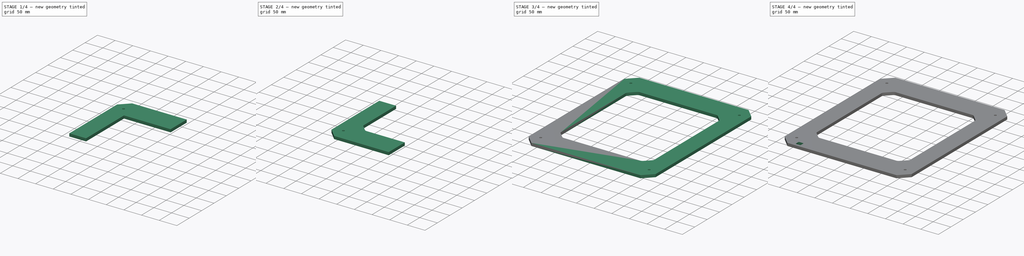
[diagram: build sequence overview — one tinted view per stage of 4, left to right]
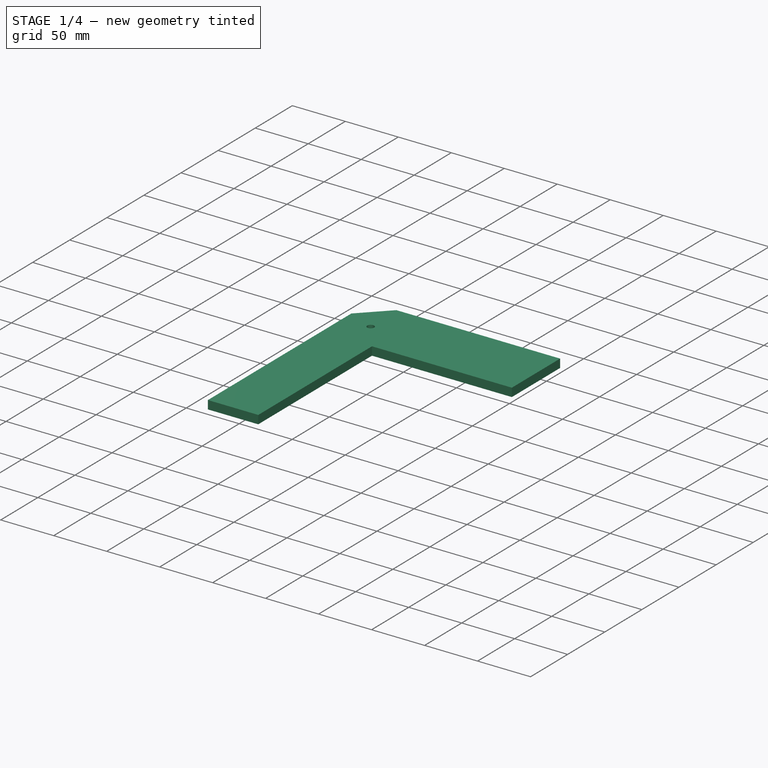
[diagram: stage 1 of 4 — iso view after this stage's code; geometry added in this stage tinted green]
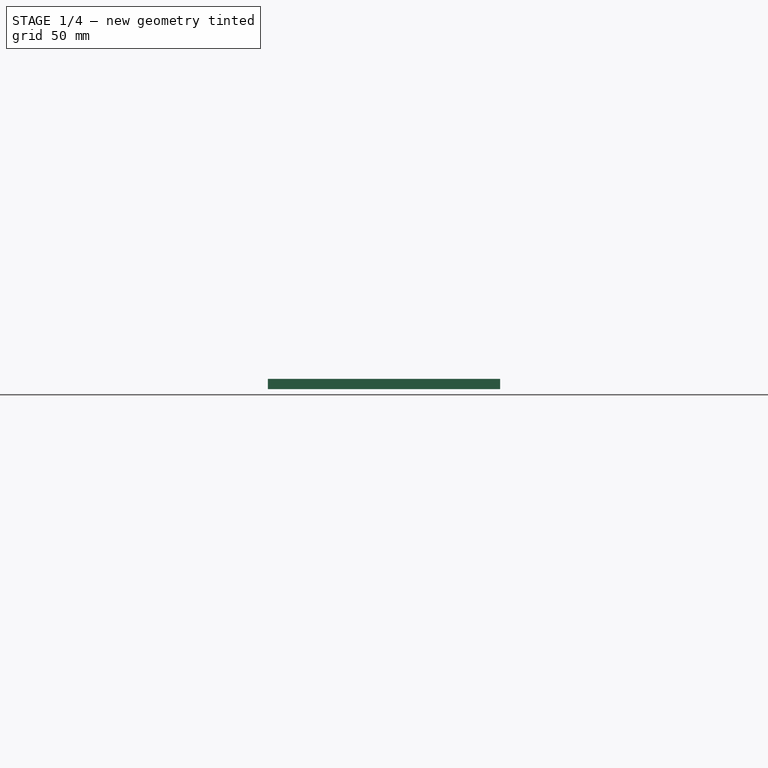
[diagram: stage 1 of 4 — front view after this stage's code; geometry added in this stage tinted green]
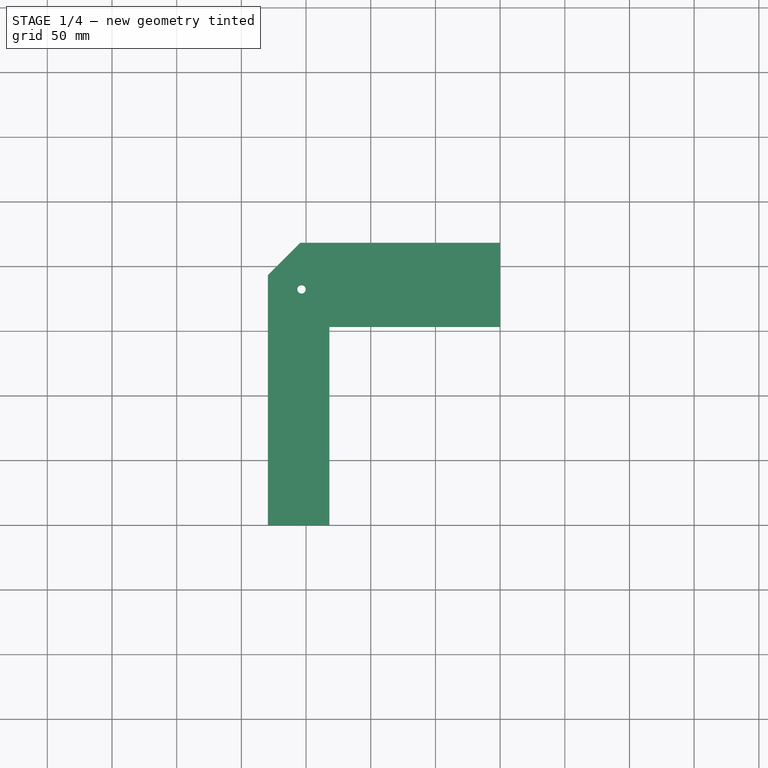
[diagram: stage 1 of 4 — top view after this stage's code; geometry added in this stage tinted green]
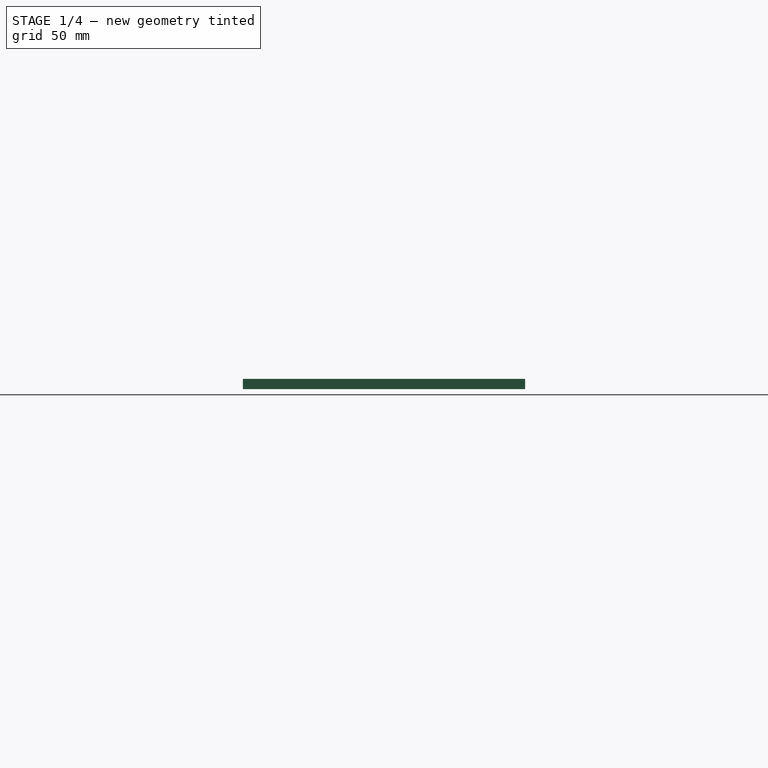
[diagram: stage 1 of 4 — right view after this stage's code; geometry added in this stage tinted green]
FCSTD DOCUMENT  (FreeCAD 0.14R3310 (Git))
Label: LATERAL DERECHO (MARCO EXTERIOR)
License: CC-BY 3.0
LicenseURL: http://creativecommons.org/licenses/by/3.0/
objects: Sketcher::SketchObject×2, PartDesign::Chamfer×2, PartDesign::Fillet×2, Part::Mirroring×2, Part::MultiFuse×2, PartDesign::Pad×1, PartDesign::Pocket×1
note: 14 computed .brp shape members not serialized (recipe doc carries the construction recipe); baked Part::Feature solids carry a one-line shape summary decoded from their .brp

FEATURE [Sketcher::SketchObject] Sketch
  sketch-geometry (7):
    g0: LineSegment StartX=0 StartY=218.25 StartZ=0 EndX=-179.5 EndY=218.25 EndZ=0
    g1: LineSegment StartX=-179.5 StartY=218.25 StartZ=0 EndX=-179.5 EndY=0 EndZ=0
    g2: Circle CenterX=-153.5 CenterY=182.25 CenterZ=0 NormalX=0 NormalY=0 NormalZ=1 Radius=3.25
    g3: LineSegment StartX=0 StartY=153.25 StartZ=0 EndX=-132 EndY=153.25 EndZ=0
    g4: LineSegment StartX=-132 StartY=153.25 StartZ=0 EndX=-132 EndY=0 EndZ=0
    g5: LineSegment StartX=0 StartY=218.25 StartZ=0 EndX=0 EndY=153.25 EndZ=0
    g6: LineSegment StartX=-132 StartY=0 StartZ=0 EndX=-179.5 EndY=0 EndZ=0
  constraints (21):
    c: PointOnObject(g0,g-2)
    c: Horizontal(g0)
    c: Coincident(g1,g0)
    c: PointOnObject(g1,g-1)
    c: Vertical(g1)
    c: PointOnObject(g3,g-2)
    c: Horizontal(g3)
    c: Coincident(g4,g3)
    c: PointOnObject(g4,g-1)
    c: Vertical(g4)
    c: Distance(g0) = 179.5
    c: DistanceY(g1) = -218.25
    c: Radius(g2) = 3.25
    c: Distance(g2,g0) = 36
    c: Distance(g2,g1) = 26
    c: Distance(g4) = 153.25
    c: Distance(g3) = 132
    c: Coincident(g5,g0)
    c: Coincident(g5,g3)
    c: Coincident(g6,g4)
    c: Coincident(g6,g1)
FEATURE [PartDesign::Pad] Pad
  Length = 8
  Length2 = 100
  Sketch = -> Sketch
  Type = 0
FEATURE [PartDesign::Chamfer] Chamfer
  Base = -> Pad [Edge5]
  Size = 25
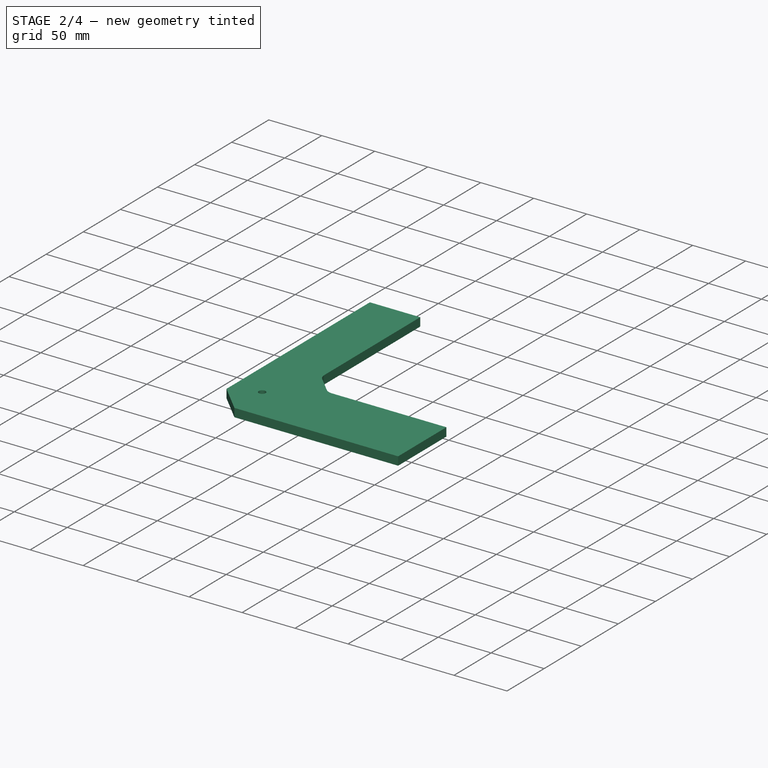
[diagram: stage 2 of 4 — iso view after this stage's code; geometry added in this stage tinted green]
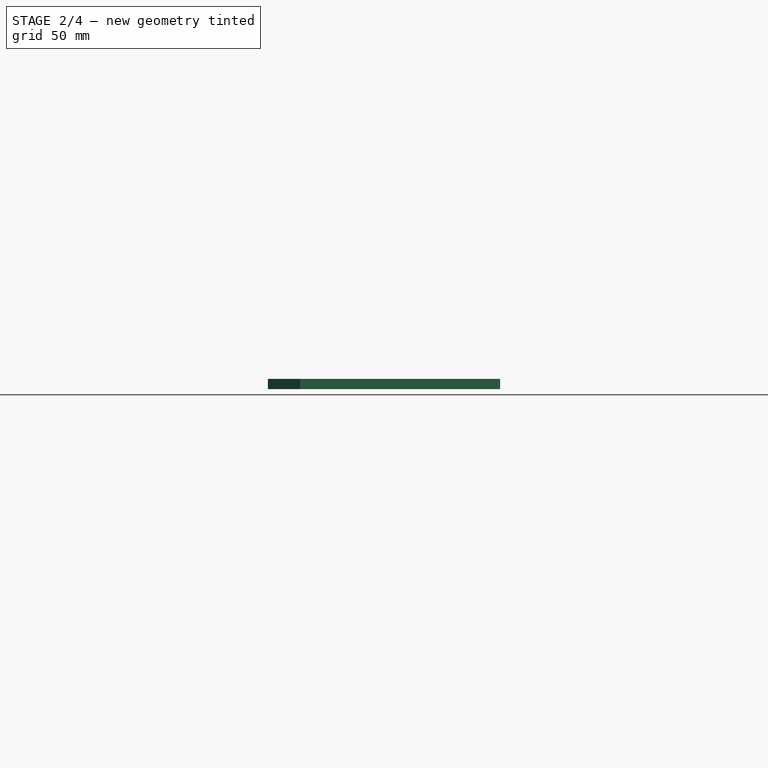
[diagram: stage 2 of 4 — front view after this stage's code; geometry added in this stage tinted green]
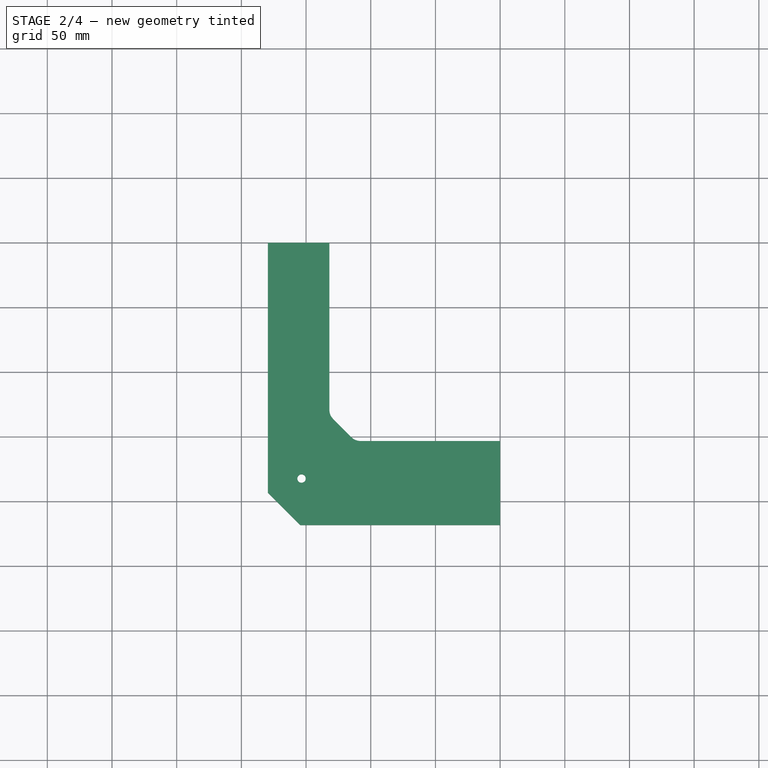
[diagram: stage 2 of 4 — top view after this stage's code; geometry added in this stage tinted green]
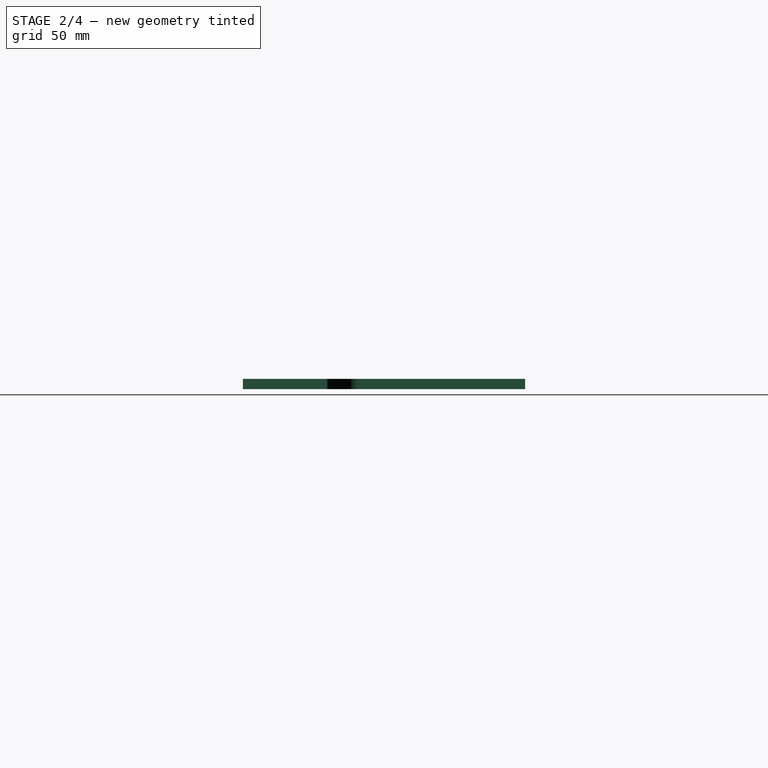
[diagram: stage 2 of 4 — right view after this stage's code; geometry added in this stage tinted green]
FEATURE [PartDesign::Chamfer] Chamfer001
  Base = -> Chamfer [Edge22]
  Size = 20
FEATURE [PartDesign::Fillet] Fillet
  Base = -> Chamfer001 [Edge10,Edge13]
  Radius = 10
FEATURE [Part::Mirroring] Part__Mirroring  label="Fillet (Mirror #1)"
  Base = (0,0,0)
  Normal = (0,1,0)
  Source = -> Fillet
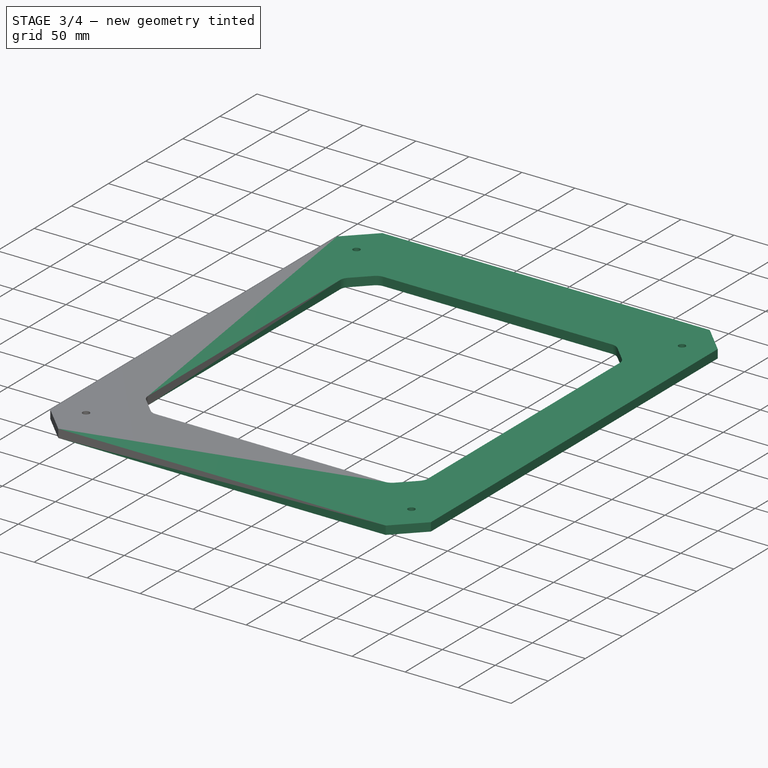
[diagram: stage 3 of 4 — iso view after this stage's code; geometry added in this stage tinted green]
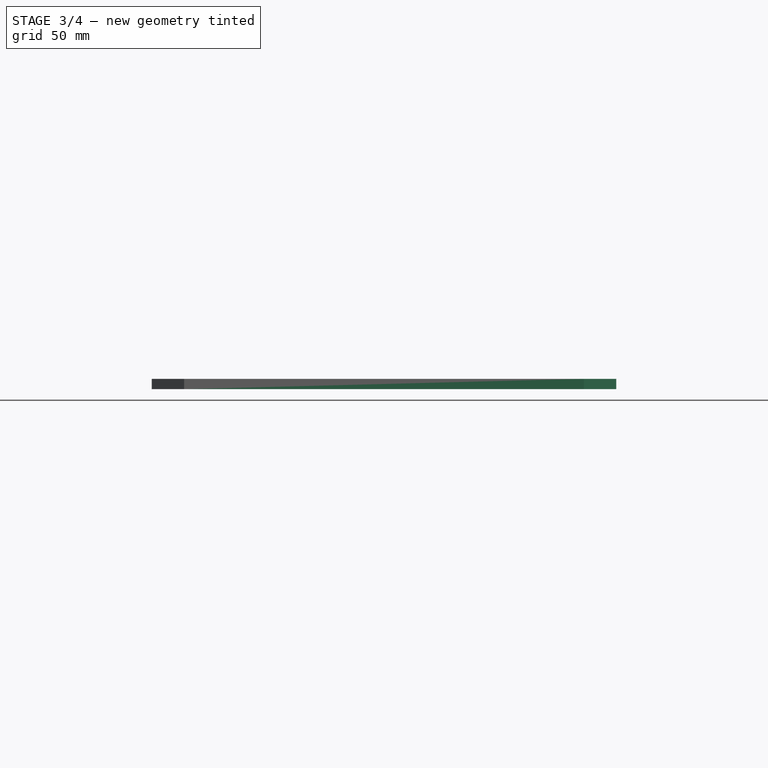
[diagram: stage 3 of 4 — front view after this stage's code; geometry added in this stage tinted green]
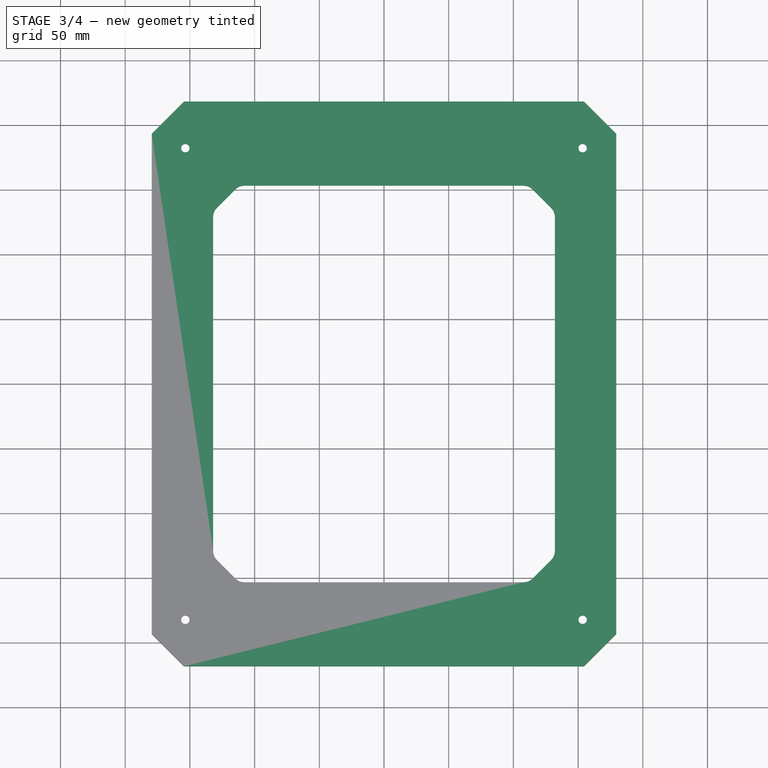
[diagram: stage 3 of 4 — top view after this stage's code; geometry added in this stage tinted green]
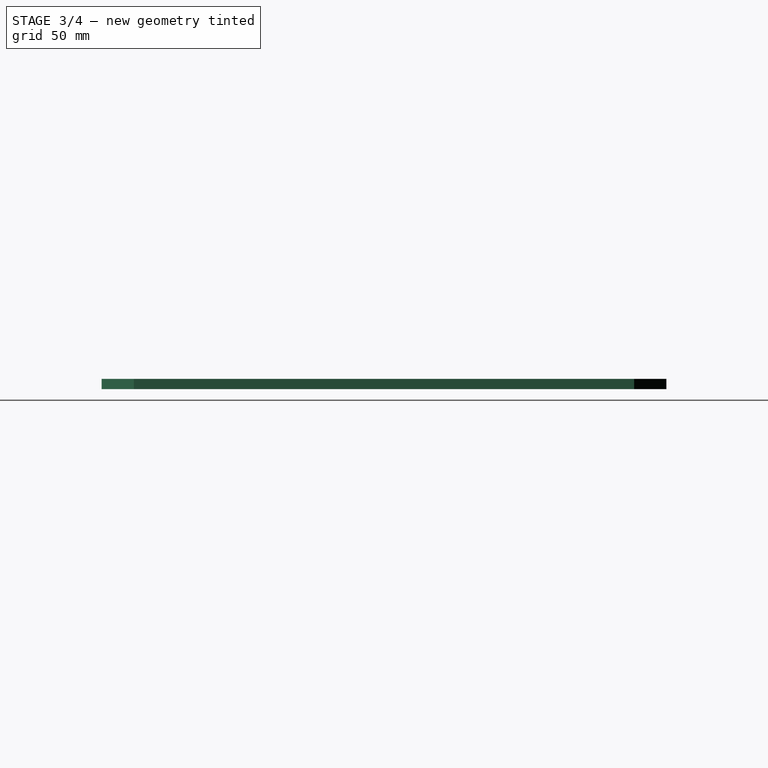
[diagram: stage 3 of 4 — right view after this stage's code; geometry added in this stage tinted green]
FEATURE [Part::MultiFuse] Fusion
  Shapes = -> [Fillet,Part__Mirroring]
FEATURE [Part::Mirroring] Part__Mirroring001  label="Fusion (Mirror #2)"
  Base = (0,0,0)
  Normal = (1,0,0)
  Source = -> Fusion
FEATURE [Part::MultiFuse] Fusion001
  Shapes = -> [Part__Mirroring001,Fusion]
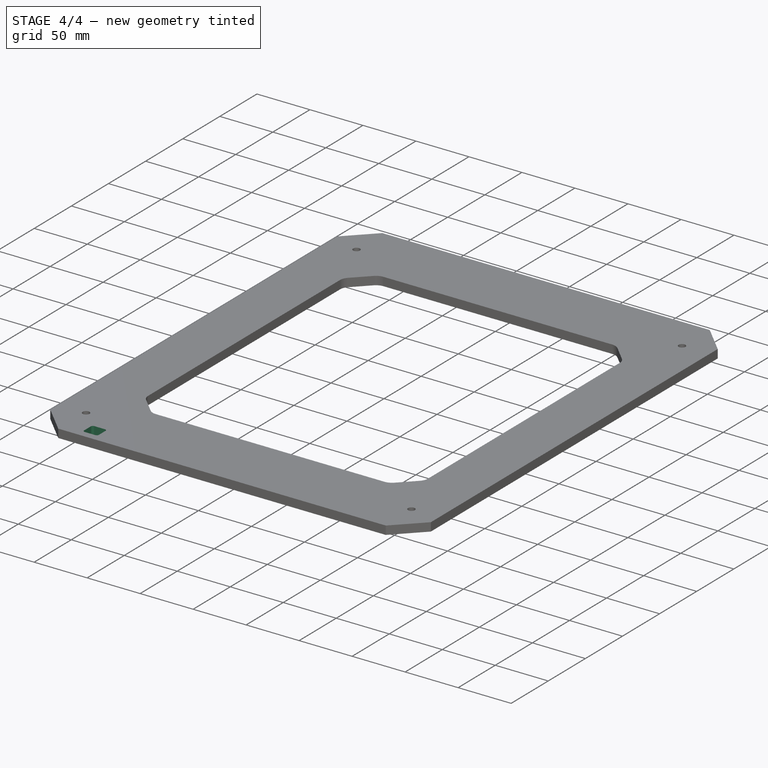
[diagram: stage 4 of 4 — iso view after this stage's code; geometry added in this stage tinted green]
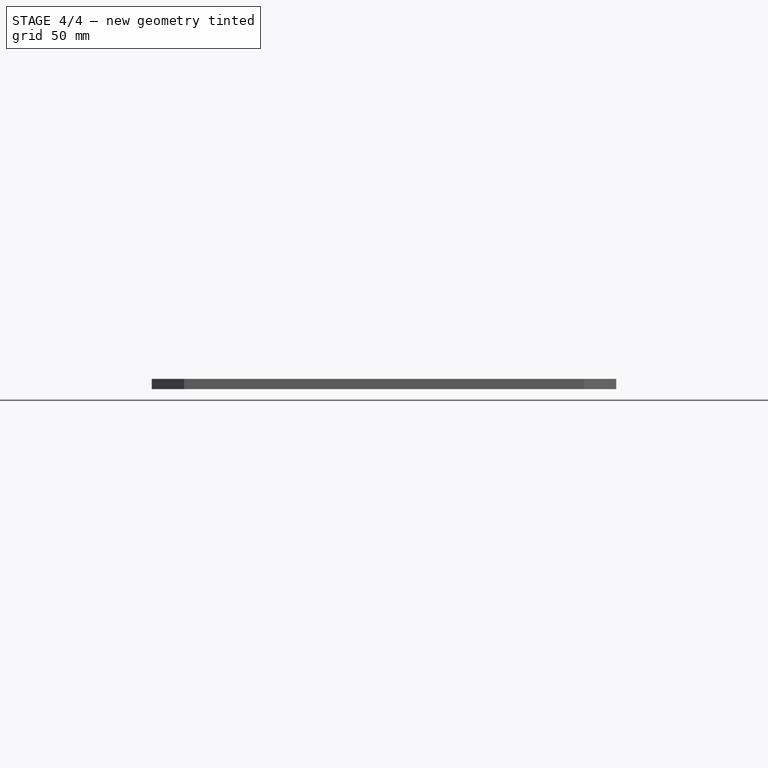
[diagram: stage 4 of 4 — front view after this stage's code; geometry added in this stage tinted green]
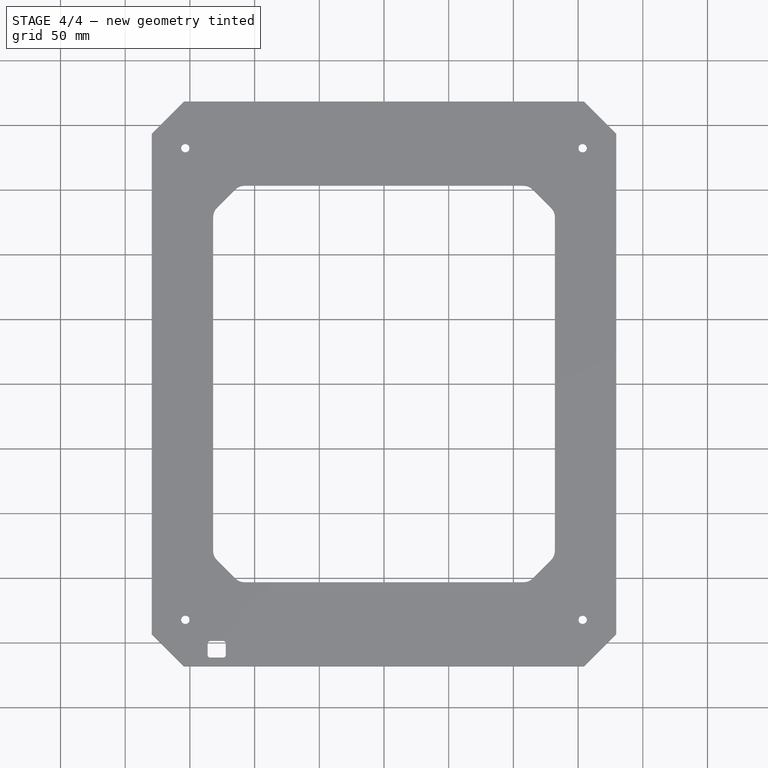
[diagram: stage 4 of 4 — top view after this stage's code; geometry added in this stage tinted green]
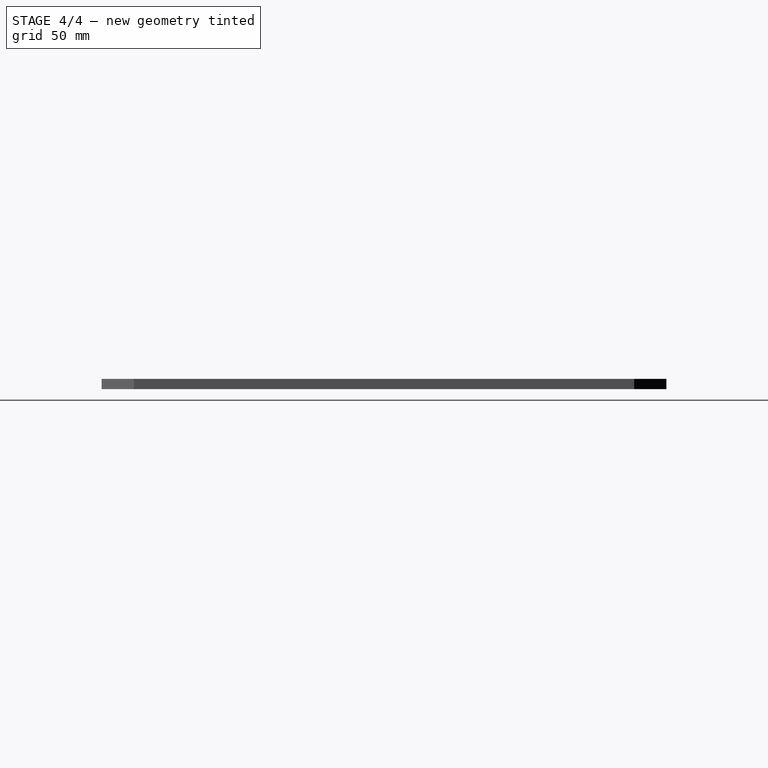
[diagram: stage 4 of 4 — right view after this stage's code; geometry added in this stage tinted green]
FEATURE [Sketcher::SketchObject] Sketch001
  ExternalGeometry = -> [Fusion001]
  Placement = pos=(0,0,8) rot=(0,0,1;0rad)
  Support = -> Fusion001 [Face27]
  sketch-geometry (4):
    g0: LineSegment StartX=-136.25 StartY=-198.5 StartZ=0 EndX=-122.25 EndY=-198.5 EndZ=0
    g1: LineSegment StartX=-122.25 StartY=-198.5 StartZ=0 EndX=-122.25 EndY=-211.5 EndZ=0
    g2: LineSegment StartX=-122.25 StartY=-211.5 StartZ=0 EndX=-136.25 EndY=-211.5 EndZ=0
    g3: LineSegment StartX=-136.25 StartY=-211.5 StartZ=0 EndX=-136.25 EndY=-198.5 EndZ=0
  constraints (12):
    c: Coincident(g0,g1)
    c: Coincident(g1,g2)
    c: Coincident(g2,g3)
    c: Coincident(g3,g0)
    c: Horizontal(g0)
    c: Horizontal(g2)
    c: Vertical(g1)
    c: Vertical(g3)
    c: Distance(g2,g-3) = 6.75
    c: Distance(g0,g-4) = 43.25
    c: DistanceY(g1) = -13
    c: DistanceX(g0) = 14
FEATURE [PartDesign::Pocket] Pocket
  Length = 5
  Sketch = -> Sketch001
  Type = 2
FEATURE [PartDesign::Fillet] Fillet001
  Base = -> Pocket [Edge93,Edge94,Edge95,Edge96]
  Radius = 2
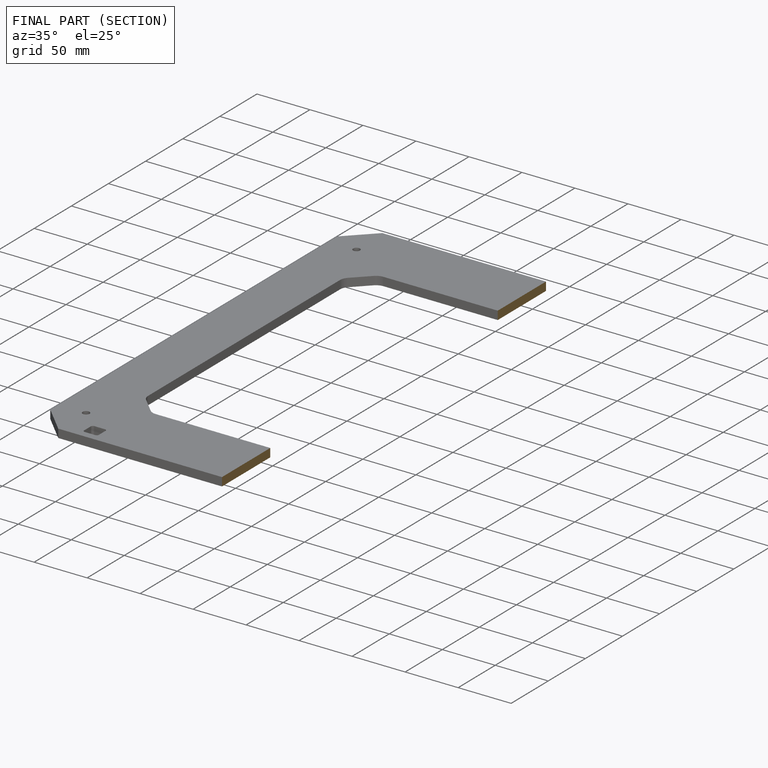
[diagram: finished part — half-section view (interior)]
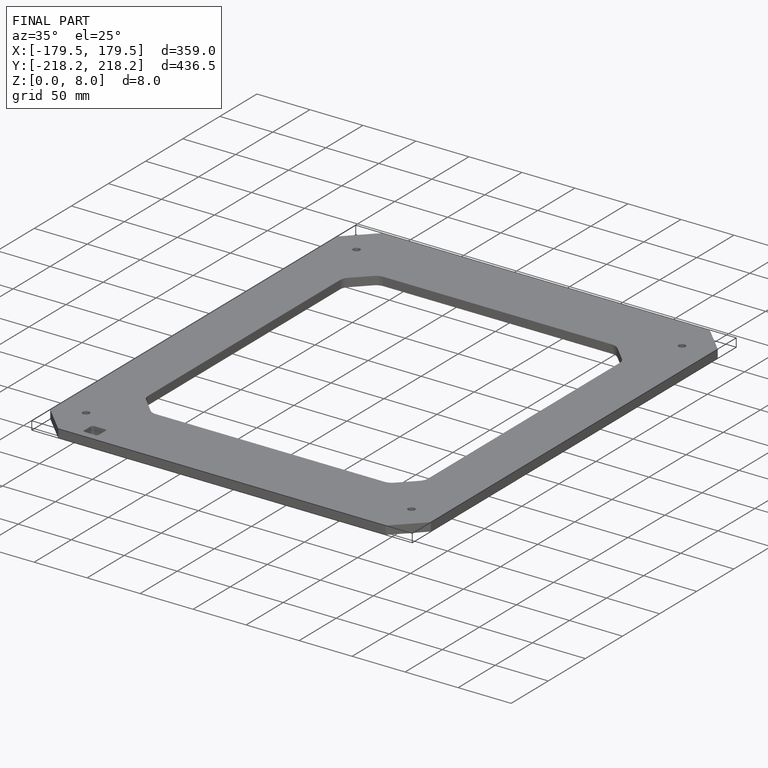
[diagram: finished part — iso view with bounding-box wireframe]
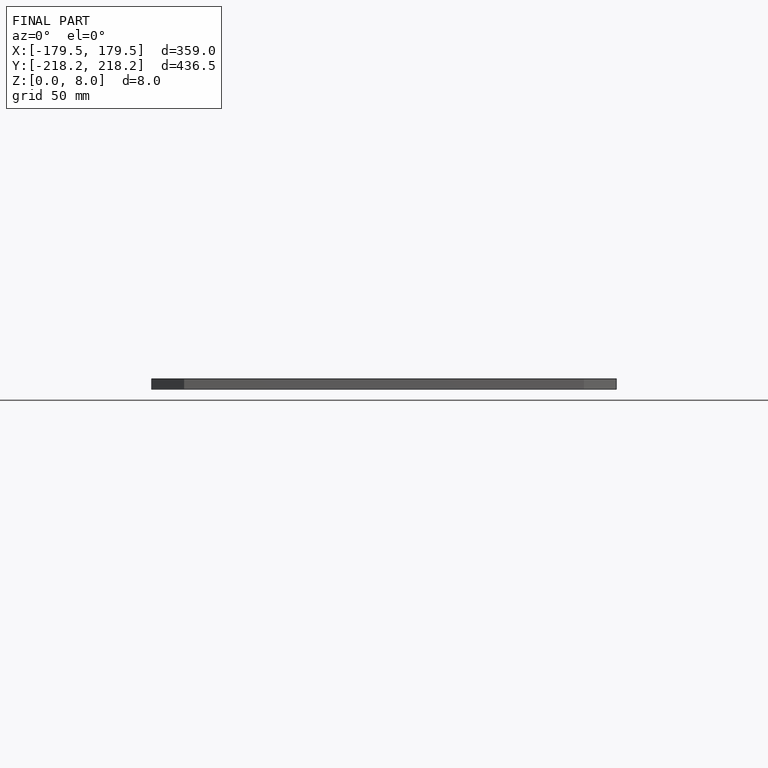
[diagram: finished part — front view with bounding-box wireframe]
